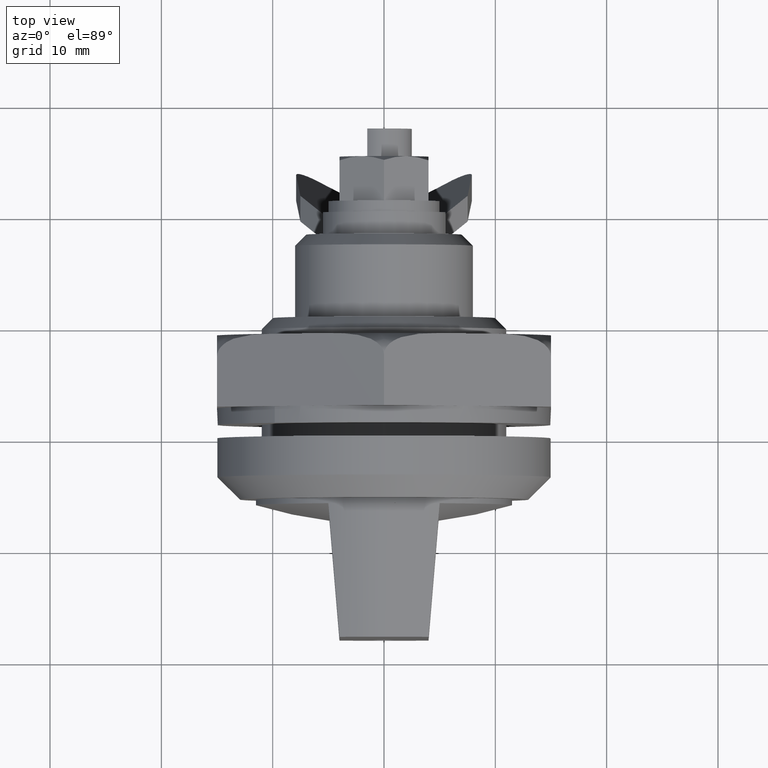
[diagram: clean part render]
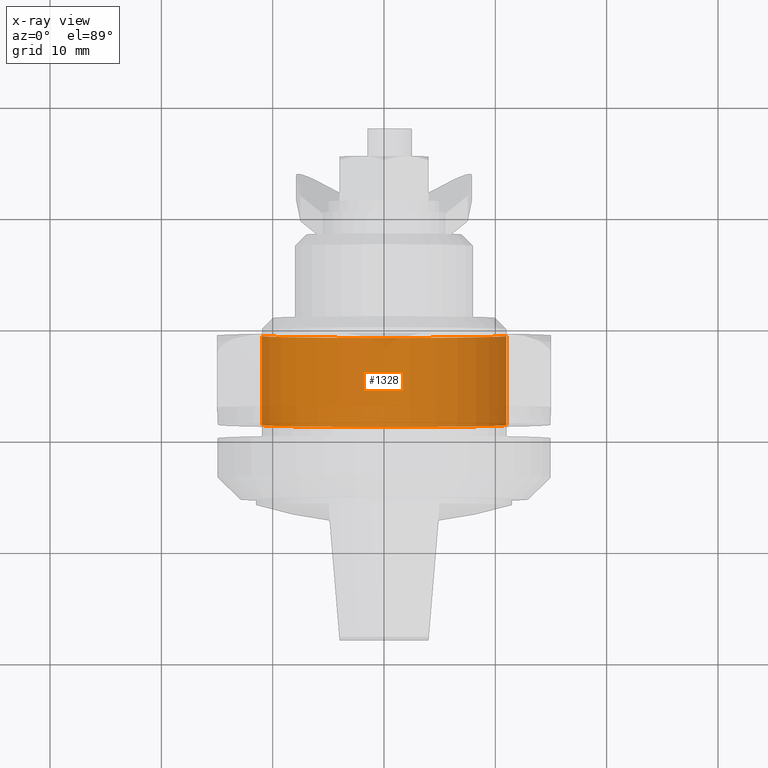
[diagram: x-ray — body ghosted, one internal face saturated and labeled with its STEP entity id]
A machine part, top view, then the same camera in x-ray: the body is ghosted and one INTERNAL B-rep face — a face not visible from any outside direction — is saturated and labeled: STEP entity #1328.
In plain terms, the highlighted face is a freeform B-spline surface patch.
Its self-contained STEP definition (entity closure, byte-faithful):
#1165=CARTESIAN_POINT('',(10.979483264816521,9.199999999999948,-0.671526051284883));
#1166=VERTEX_POINT('',#1165);
#1184=CARTESIAN_POINT('',(10.979483259012930,1.199999999999999,-0.671526146174842));
#1185=VERTEX_POINT('',#1184);
#1186=CARTESIAN_POINT('',(10.979483264816521,9.199999999999948,-0.671526051284883));
#1187=CARTESIAN_POINT('',(10.979483259012930,1.199999999999999,-0.671526146174842));
#1188=QUASI_UNIFORM_CURVE('',1,(#1186,#1187),.UNSPECIFIED.,.F.,.U.);
#1189=EDGE_CURVE('',#1166,#1185,#1188,.T.);
#1208=CARTESIAN_POINT('',(-10.979483259012930,1.200000000000000,0.671526146174834));
#1209=VERTEX_POINT('',#1208);
#1223=CARTESIAN_POINT('',(-10.979483264816521,9.199999999999948,0.671526051284878));
#1224=VERTEX_POINT('',#1223);
#1225=CARTESIAN_POINT('',(-10.979483264816521,9.199999999999948,0.671526051284878));
#1226=CARTESIAN_POINT('',(-10.979483259012930,1.200000000000000,0.671526146174834));
#1227=QUASI_UNIFORM_CURVE('',1,(#1225,#1226),.UNSPECIFIED.,.F.,.U.);
#1228=EDGE_CURVE('',#1224,#1209,#1227,.T.);
#1246=CARTESIAN_POINT('',(-10.979482782640650,9.400000000000002,0.671533934883432));
#1247=CARTESIAN_POINT('',(-11.651016717524087,9.400000000000002,-10.307948847757219));
#1248=CARTESIAN_POINT('',(-0.671533934883434,9.400000000000002,-10.979482782640650));
#1249=CARTESIAN_POINT('',(10.307948847757215,9.400000000000002,-11.651016717524087));
#1250=CARTESIAN_POINT('',(10.979482782640650,9.400000000000002,-0.671533934883436));
#1251=CARTESIAN_POINT('',(-10.979482782640650,0.994999999999999,0.671533934883432));
#1252=CARTESIAN_POINT('',(-11.651016717524087,0.994999999999999,-10.307948847757219));
#1253=CARTESIAN_POINT('',(-0.671533934883434,0.994999999999999,-10.979482782640650));
#1254=CARTESIAN_POINT('',(10.307948847757215,0.994999999999999,-11.651016717524087));
#1255=CARTESIAN_POINT('',(10.979482782640650,0.994999999999999,-0.671533934883436));
#1263=(BOUNDED_SURFACE()B_SPLINE_SURFACE(2,1,((#1246,#1251),(#1247,#1252),(#1248,#1253),(#1249,#1254),(#1250,#1255)),.UNSPECIFIED.,.F.,.F.,.U.)B_SPLINE_SURFACE_WITH_KNOTS((3,2,3),(2,2),(0.0,18.225396744416368,36.450793488832737),(0.0,8.405000000000003),.UNSPECIFIED.)GEOMETRIC_REPRESENTATION_ITEM()RATIONAL_B_SPLINE_SURFACE(((1.0,1.0),(0.707106781186548,0.707106781186548),(1.0,1.0),(0.707106781186548,0.707106781186548),(1.0,1.0)))REPRESENTATION_ITEM('')SURFACE());
#1264=CARTESIAN_POINT('',(0.0,9.199999999999999,-11.000000000000121));
#1265=VERTEX_POINT('',#1264);
#1266=CARTESIAN_POINT('',(0.0,9.199999999999999,-11.000000000000121));
#1267=CARTESIAN_POINT('',(10.347774179855334,9.199999999999973,-11.000000000000034));
#1268=CARTESIAN_POINT('',(10.979483264816521,9.199999999999948,-0.671526051284883));
#1276=(BOUNDED_CURVE()B_SPLINE_CURVE(2,(#1266,#1267,#1268),.UNSPECIFIED.,.F.,.U.)B_SPLINE_CURVE_WITH_KNOTS((3,3),(0.0,0.239333086135760),.UNSPECIFIED.)CURVE()GEOMETRIC_REPRESENTATION_ITEM()RATIONAL_B_SPLINE_CURVE((1.0,0.719603848132560,0.976072307201324))REPRESENTATION_ITEM(''));
#1277=EDGE_CURVE('',#1265,#1166,#1276,.T.);
#1278=ORIENTED_EDGE('',*,*,#1277,.F.);
#1279=CARTESIAN_POINT('',(-10.979483264816521,9.199999999999948,0.671526051284878));
#1280=CARTESIAN_POINT('',(-10.999999999997328,9.199999999999948,0.336076443432828));
#1281=CARTESIAN_POINT('',(-10.999999999997369,9.199999999999950,-1.671404E-013));
#1282=CARTESIAN_POINT('',(-10.999999999998789,9.199999999999974,-11.000000000000201));
#1283=CARTESIAN_POINT('',(0.0,9.199999999999999,-11.000000000000121));
#1291=(BOUNDED_CURVE()B_SPLINE_CURVE(2,(#1279,#1280,#1281,#1282,#1283),.UNSPECIFIED.,.F.,.U.)B_SPLINE_CURVE_WITH_KNOTS((3,2,3),(0.739333086135760,0.750000000000000,1.0),.UNSPECIFIED.)CURVE()GEOMETRIC_REPRESENTATION_ITEM()RATIONAL_B_SPLINE_CURVE((0.976072307201324,0.987502933053987,1.0,0.707106781186547,1.0))REPRESENTATION_ITEM(''));
#1292=EDGE_CURVE('',#1224,#1265,#1291,.T.);
#1293=ORIENTED_EDGE('',*,*,#1292,.F.);
#1294=ORIENTED_EDGE('',*,*,#1228,.T.);
#1295=CARTESIAN_POINT('',(0.0,1.200000000000000,-11.000000000000121));
#1296=VERTEX_POINT('',#1295);
#1297=CARTESIAN_POINT('',(-10.979483259012934,1.200000000000000,0.671526146174834));
#1298=CARTESIAN_POINT('',(-10.999999999997401,1.200000000000000,0.336076491010834));
#1299=CARTESIAN_POINT('',(-10.999999999997440,1.200000000000000,-1.677868E-013));
#1300=CARTESIAN_POINT('',(-10.999999999998819,1.200000000000000,-11.000000000000201));
#1301=CARTESIAN_POINT('',(0.0,1.200000000000000,-11.000000000000121));
#1309=(BOUNDED_CURVE()B_SPLINE_CURVE(2,(#1297,#1298,#1299,#1300,#1301),.UNSPECIFIED.,.F.,.U.)B_SPLINE_CURVE_WITH_KNOTS((3,2,3),(0.739333084644527,0.750000000000000,1.0),.UNSPECIFIED.)CURVE()GEOMETRIC_REPRESENTATION_ITEM()RATIONAL_B_SPLINE_CURVE((0.976072304005326,0.987502931306900,1.0,0.707106781186547,1.0))REPRESENTATION_ITEM(''));
#1310=EDGE_CURVE('',#1209,#1296,#1309,.T.);
#1311=ORIENTED_EDGE('',*,*,#1310,.T.);
#1312=CARTESIAN_POINT('',(0.0,1.200000000000000,-11.000000000000121));
#1313=CARTESIAN_POINT('',(10.347774090257836,1.200000000000000,-11.000000000000037));
#1314=CARTESIAN_POINT('',(10.979483259012934,1.200000000000000,-0.671526146174842));
#1322=(BOUNDED_CURVE()B_SPLINE_CURVE(2,(#1312,#1313,#1314),.UNSPECIFIED.,.F.,.U.)B_SPLINE_CURVE_WITH_KNOTS((3,3),(0.0,0.239333084644527),.UNSPECIFIED.)CURVE()GEOMETRIC_REPRESENTATION_ITEM()RATIONAL_B_SPLINE_CURVE((1.0,0.719603849879648,0.976072304005326))REPRESENTATION_ITEM(''));
#1323=EDGE_CURVE('',#1296,#1185,#1322,.T.);
#1324=ORIENTED_EDGE('',*,*,#1323,.T.);
#1325=ORIENTED_EDGE('',*,*,#1189,.F.);
#1326=EDGE_LOOP('',(#1278,#1293,#1294,#1311,#1324,#1325));
#1327=FACE_OUTER_BOUND('',#1326,.T.);
#1328=ADVANCED_FACE('',(#1327),#1263,.F.);